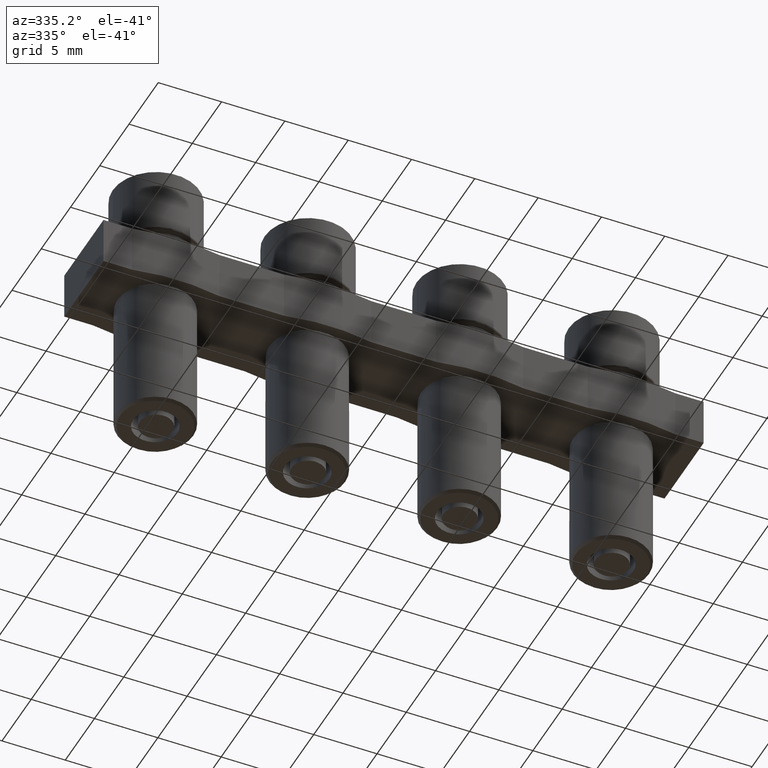
[diagram: clean part render]
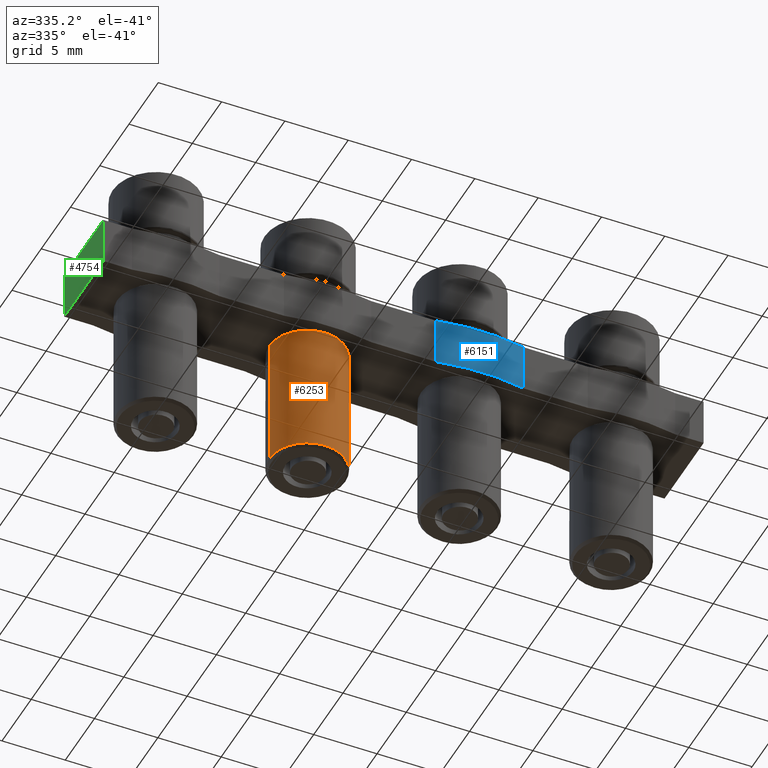
[diagram: same view with three faces highlighted in distinct colors, each labeled with its STEP entity id]
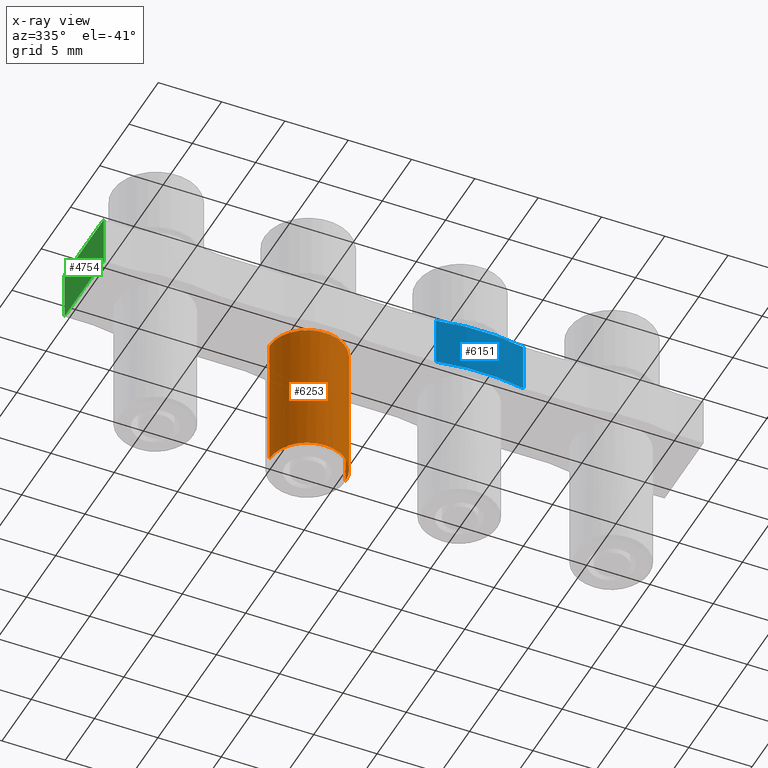
[diagram: x-ray of the same camera — body ghosted, the three highlighted faces saturated]
A machine part, auxiliary view with three faces highlighted in distinct colors.
The next image is the same camera in x-ray (body ghosted, the three faces saturated) — at least one of them is partly hidden behind the body in this view.
Their STEP definitions:

[orange] entity #6253 — the highlighted cylindrical surface (partial cylindrical patch) has radius 3 mm, axis along (-0, -0, -1).
#24 = EDGE_CURVE ( 'NONE', #1208, #1229, #5253, .T. ) ;
#31 = EDGE_CURVE ( 'NONE', #1148, #1206, #5319, .T. ) ;
#382 = AXIS2_PLACEMENT_3D ( 'NONE', #5996, #5969, #5960 ) ;
#891 = EDGE_LOOP ( 'NONE', ( #2692, #2745, #2743, #2733, #2717 ) ) ;
#1148 = VERTEX_POINT ( 'NONE', #1327 ) ;
#1206 = VERTEX_POINT ( 'NONE', #1386 ) ;
#1208 = VERTEX_POINT ( 'NONE', #1373 ) ;
#1222 = VERTEX_POINT ( 'NONE', #1376 ) ;
#1229 = VERTEX_POINT ( 'NONE', #1401 ) ;
#1327 = CARTESIAN_POINT ( 'NONE',  ( -15.06167760658127000, -2.289291466493766400E-015, -4.900000000077398000 ) ) ;
#1373 = CARTESIAN_POINT ( 'NONE',  ( -15.06167760658913000, -2.289291466493766400E-015, -15.60000000008048600 ) ) ;
#1376 = CARTESIAN_POINT ( 'NONE',  ( -9.061677606589132200, -1.921897426749560600E-015, -15.60000000008048600 ) ) ;
#1386 = CARTESIAN_POINT ( 'NONE',  ( -9.061677606596992600, -1.921897426750042200E-015, -4.900000000077398000 ) ) ;
#1401 = CARTESIAN_POINT ( 'NONE',  ( -12.06167760658913000, -2.999999999911693700, -15.60000000008048600 ) ) ;
#2692 = ORIENTED_EDGE ( 'NONE', *, *, #4662, .F. ) ;
#2717 = ORIENTED_EDGE ( 'NONE', *, *, #4670, .T. ) ;
#2733 = ORIENTED_EDGE ( 'NONE', *, *, #24, .T. ) ;
#2743 = ORIENTED_EDGE ( 'NONE', *, *, #4663, .T. ) ;
#2745 = ORIENTED_EDGE ( 'NONE', *, *, #31, .F. ) ;
#2840 = CARTESIAN_POINT ( 'NONE',  ( -12.06167760658913000, -2.289291466493766400E-015, -4.900000000077398000 ) ) ;
#2842 = CARTESIAN_POINT ( 'NONE',  ( -12.06167760658913000, -2.289291466493766400E-015, -15.60000000008048600 ) ) ;
#2843 = DIRECTION ( 'NONE',  ( -0.0000000000000000000, -0.0000000000000000000, 1.000000000000000000 ) ) ;
#2844 = DIRECTION ( 'NONE',  ( -1.000000000000000000, 0.0000000000000000000, 0.0000000000000000000 ) ) ;
#2845 = DIRECTION ( 'NONE',  ( -1.000000000000000000, 0.0000000000000000000, 0.0000000000000000000 ) ) ;
#2869 = DIRECTION ( 'NONE',  ( 0.0000000000000000000, 0.0000000000000000000, 1.000000000000000000 ) ) ;
#3489 = CARTESIAN_POINT ( 'NONE',  ( -12.06167760658913000, -2.289291466493766400E-015, -15.60000000008048600 ) ) ;
#3490 = DIRECTION ( 'NONE',  ( -1.000000000000000000, 0.0000000000000000000, 0.0000000000000000000 ) ) ;
#3515 = DIRECTION ( 'NONE',  ( 0.0000000000000000000, 0.0000000000000000000, 1.000000000000000000 ) ) ;
#4446 = LINE ( 'NONE', #4455, #5189 ) ;
#4455 = CARTESIAN_POINT ( 'NONE',  ( -9.061677606589132200, -1.921897426749560600E-015, -4.800000000080492800 ) ) ;
#4456 = LINE ( 'NONE', #4457, #5232 ) ;
#4457 = CARTESIAN_POINT ( 'NONE',  ( -15.06167760658913000, -2.289291466493766400E-015, -4.800000000080492800 ) ) ;
#4459 = DIRECTION ( 'NONE',  ( -0.0000000000000000000, -0.0000000000000000000, -1.000000000000000000 ) ) ;
#4471 = DIRECTION ( 'NONE',  ( -0.0000000000000000000, -0.0000000000000000000, -1.000000000000000000 ) ) ;
#4662 = EDGE_CURVE ( 'NONE', #1206, #1222, #4446, .T. ) ;
#4663 = EDGE_CURVE ( 'NONE', #1148, #1208, #4456, .T. ) ;
#4670 = EDGE_CURVE ( 'NONE', #1229, #1222, #5207, .T. ) ;
#5189 = VECTOR ( 'NONE', #4471, 1000.000000000000000 ) ;
#5207 = CIRCLE ( 'NONE', #5208, 2.999999999999999100 ) ;
#5208 = AXIS2_PLACEMENT_3D ( 'NONE', #3489, #3515, #3490 ) ;
#5232 = VECTOR ( 'NONE', #4459, 1000.000000000000000 ) ;
#5253 = CIRCLE ( 'NONE', #5254, 2.999999999999999100 ) ;
#5254 = AXIS2_PLACEMENT_3D ( 'NONE', #2842, #2869, #2845 ) ;
#5297 = AXIS2_PLACEMENT_3D ( 'NONE', #2840, #2843, #2844 ) ;
#5319 = CIRCLE ( 'NONE', #5297, 2.999999999992139200 ) ;
#5959 = FACE_OUTER_BOUND ( 'NONE', #891, .T. ) ;
#5960 = DIRECTION ( 'NONE',  ( -1.000000000000000000, 0.0000000000000000000, 0.0000000000000000000 ) ) ;
#5968 = CYLINDRICAL_SURFACE ( 'NONE', #382, 2.999999999999999100 ) ;
#5969 = DIRECTION ( 'NONE',  ( -0.0000000000000000000, -0.0000000000000000000, -1.000000000000000000 ) ) ;
#5996 = CARTESIAN_POINT ( 'NONE',  ( -12.06167760658913000, -2.289291466493766400E-015, -4.800000000080492800 ) ) ;
#6253 = ADVANCED_FACE ( 'NONE', ( #5959 ), #5968, .T. ) ;

[blue] entity #6151 — the highlighted cylindrical surface (partial cylindrical patch) has radius 17.15 mm, axis along (0, 0, 1).
#110 = EDGE_CURVE ( 'NONE', #1144, #1215, #3080, .T. ) ;
#263 = AXIS2_PLACEMENT_3D ( 'NONE', #4346, #4355, #4343 ) ;
#471 = VERTEX_POINT ( 'NONE', #3211 ) ;
#512 = VERTEX_POINT ( 'NONE', #2187 ) ;
#688 = ORIENTED_EDGE ( 'NONE', *, *, #4633, .T. ) ;
#690 = ORIENTED_EDGE ( 'NONE', *, *, #110, .T. ) ;
#702 = ORIENTED_EDGE ( 'NONE', *, *, #3459, .F. ) ;
#738 = ORIENTED_EDGE ( 'NONE', *, *, #4659, .T. ) ;
#1006 = EDGE_LOOP ( 'NONE', ( #688, #738, #690, #702 ) ) ;
#1144 = VERTEX_POINT ( 'NONE', #1320 ) ;
#1215 = VERTEX_POINT ( 'NONE', #1385 ) ;
#1320 = CARTESIAN_POINT ( 'NONE',  ( -3.447100230629700900, -3.349999999999916600, -0.9000000000000014700 ) ) ;
#1385 = CARTESIAN_POINT ( 'NONE',  ( -3.447100230629704500, -3.349999999999917500, -4.800000000000001600 ) ) ;
#1751 = CARTESIAN_POINT ( 'NONE',  ( 3.469446951953614200E-015, 13.45000000000008500, -4.800000000000001600 ) ) ;
#1763 = DIRECTION ( 'NONE',  ( 0.0000000000000000000, 0.0000000000000000000, -1.000000000000000000 ) ) ;
#1790 = DIRECTION ( 'NONE',  ( -1.000000000000000000, 0.0000000000000000000, 0.0000000000000000000 ) ) ;
#2121 = LINE ( 'NONE', #2122, #5185 ) ;
#2122 = CARTESIAN_POINT ( 'NONE',  ( 3.447100230629713400, -3.349999999999917000, -9.302499305941093900 ) ) ;
#2130 = DIRECTION ( 'NONE',  ( 0.0000000000000000000, 0.0000000000000000000, 1.000000000000000000 ) ) ;
#2187 = CARTESIAN_POINT ( 'NONE',  ( 3.447100230629708100, -3.349999999999916600, -4.800000000000001600 ) ) ;
#3080 = LINE ( 'NONE', #3088, #4835 ) ;
#3088 = CARTESIAN_POINT ( 'NONE',  ( -3.447100230629702300, -3.349999999999917900, -9.302499305941093900 ) ) ;
#3089 = DIRECTION ( 'NONE',  ( -0.0000000000000000000, -0.0000000000000000000, -1.000000000000000000 ) ) ;
#3211 = CARTESIAN_POINT ( 'NONE',  ( 3.447100230629714700, -3.349999999999915700, -0.9000000000000014700 ) ) ;
#3459 = EDGE_CURVE ( 'NONE', #512, #1215, #5015, .T. ) ;
#4343 = DIRECTION ( 'NONE',  ( 1.000000000000000000, 0.0000000000000000000, 0.0000000000000000000 ) ) ;
#4346 = CARTESIAN_POINT ( 'NONE',  ( 3.469446951953614200E-015, 13.45000000000008500, -9.302499305941093900 ) ) ;
#4355 = DIRECTION ( 'NONE',  ( 0.0000000000000000000, 0.0000000000000000000, 1.000000000000000000 ) ) ;
#4376 = FACE_OUTER_BOUND ( 'NONE', #1006, .T. ) ;
#4377 = CYLINDRICAL_SURFACE ( 'NONE', #263, 17.15000000000021900 ) ;
#4445 = CARTESIAN_POINT ( 'NONE',  ( 3.469446951953614200E-015, 13.45000000000008500, -0.9000000000000014700 ) ) ;
#4452 = DIRECTION ( 'NONE',  ( -1.000000000000000000, 0.0000000000000000000, 0.0000000000000000000 ) ) ;
#4470 = DIRECTION ( 'NONE',  ( 0.0000000000000000000, 0.0000000000000000000, -1.000000000000000000 ) ) ;
#4633 = EDGE_CURVE ( 'NONE', #512, #471, #2121, .T. ) ;
#4659 = EDGE_CURVE ( 'NONE', #471, #1144, #5200, .T. ) ;
#4835 = VECTOR ( 'NONE', #3089, 1000.000000000000000 ) ;
#5015 = CIRCLE ( 'NONE', #5031, 17.15000000000021900 ) ;
#5031 = AXIS2_PLACEMENT_3D ( 'NONE', #1751, #1763, #1790 ) ;
#5185 = VECTOR ( 'NONE', #2130, 1000.000000000000000 ) ;
#5200 = CIRCLE ( 'NONE', #5201, 17.15000000000021900 ) ;
#5201 = AXIS2_PLACEMENT_3D ( 'NONE', #4445, #4470, #4452 ) ;
#6151 = ADVANCED_FACE ( 'NONE', ( #4376 ), #4377, .T. ) ;

[green] entity #4754 — the highlighted planar face has unit normal (1, 0, -0).
#162 = AXIS2_PLACEMENT_3D ( 'NONE', #3970, #3938, #3945 ) ;
#246 = VECTOR ( 'NONE', #4253, 1000.000000000000000 ) ;
#464 = VERTEX_POINT ( 'NONE', #3180 ) ;
#495 = VERTEX_POINT ( 'NONE', #3235 ) ;
#498 = VERTEX_POINT ( 'NONE', #3175 ) ;
#504 = VERTEX_POINT ( 'NONE', #3197 ) ;
#954 = EDGE_LOOP ( 'NONE', ( #3344, #3300, #3305, #3333 ) ) ;
#1679 = DIRECTION ( 'NONE',  ( 2.009125974575783600E-016, -1.000000000000000000, 0.0000000000000000000 ) ) ;
#1693 = LINE ( 'NONE', #1695, #4966 ) ;
#1695 = CARTESIAN_POINT ( 'NONE',  ( -29.69999999999999600, -3.349999999999914800, -0.9000000000000014700 ) ) ;
#1863 = DIRECTION ( 'NONE',  ( 0.0000000000000000000, 0.0000000000000000000, -1.000000000000000000 ) ) ;
#1878 = LINE ( 'NONE', #1881, #5104 ) ;
#1881 = CARTESIAN_POINT ( 'NONE',  ( -29.69999999999999600, 3.350000000000080000, -4.800000000000001600 ) ) ;
#3175 = CARTESIAN_POINT ( 'NONE',  ( -29.69999999999999600, 3.350000000000080000, -4.800000000000001600 ) ) ;
#3180 = CARTESIAN_POINT ( 'NONE',  ( -29.69999999999999900, 3.350000000000080000, -0.9000000000000014700 ) ) ;
#3197 = CARTESIAN_POINT ( 'NONE',  ( -29.69999999999999600, -3.349999999999922400, -4.800000000000001600 ) ) ;
#3235 = CARTESIAN_POINT ( 'NONE',  ( -29.69999999999999600, -3.349999999999921000, -0.9000000000000014700 ) ) ;
#3300 = ORIENTED_EDGE ( 'NONE', *, *, #4658, .F. ) ;
#3305 = ORIENTED_EDGE ( 'NONE', *, *, #4811, .F. ) ;
#3333 = ORIENTED_EDGE ( 'NONE', *, *, #3441, .F. ) ;
#3344 = ORIENTED_EDGE ( 'NONE', *, *, #4485, .T. ) ;
#3441 = EDGE_CURVE ( 'NONE', #464, #495, #1693, .T. ) ;
#3935 = PLANE ( 'NONE',  #162 ) ;
#3938 = DIRECTION ( 'NONE',  ( 1.000000000000000000, 2.009125974575783600E-016, -0.0000000000000000000 ) ) ;
#3945 = DIRECTION ( 'NONE',  ( -2.009125974575783600E-016, 1.000000000000000000, 0.0000000000000000000 ) ) ;
#3970 = CARTESIAN_POINT ( 'NONE',  ( -29.69999999999999900, 7.221084286606894100, -4.800000000000001600 ) ) ;
#3982 = FACE_OUTER_BOUND ( 'NONE', #954, .T. ) ;
#4201 = LINE ( 'NONE', #4213, #246 ) ;
#4213 = CARTESIAN_POINT ( 'NONE',  ( -29.69999999999999600, -3.349999999999921000, -0.9000000000000014700 ) ) ;
#4253 = DIRECTION ( 'NONE',  ( 0.0000000000000000000, 0.0000000000000000000, -1.000000000000000000 ) ) ;
#4438 = LINE ( 'NONE', #4469, #5229 ) ;
#4439 = DIRECTION ( 'NONE',  ( -2.009125974575783600E-016, 1.000000000000000000, 0.0000000000000000000 ) ) ;
#4469 = CARTESIAN_POINT ( 'NONE',  ( -29.69999999999999900, 7.221084286606894100, -4.800000000000001600 ) ) ;
#4485 = EDGE_CURVE ( 'NONE', #464, #498, #1878, .T. ) ;
#4658 = EDGE_CURVE ( 'NONE', #504, #498, #4438, .T. ) ;
#4754 = ADVANCED_FACE ( 'NONE', ( #3982 ), #3935, .F. ) ;
#4811 = EDGE_CURVE ( 'NONE', #495, #504, #4201, .T. ) ;
#4966 = VECTOR ( 'NONE', #1679, 1000.000000000000000 ) ;
#5104 = VECTOR ( 'NONE', #1863, 1000.000000000000000 ) ;
#5229 = VECTOR ( 'NONE', #4439, 1000.000000000000000 ) ;